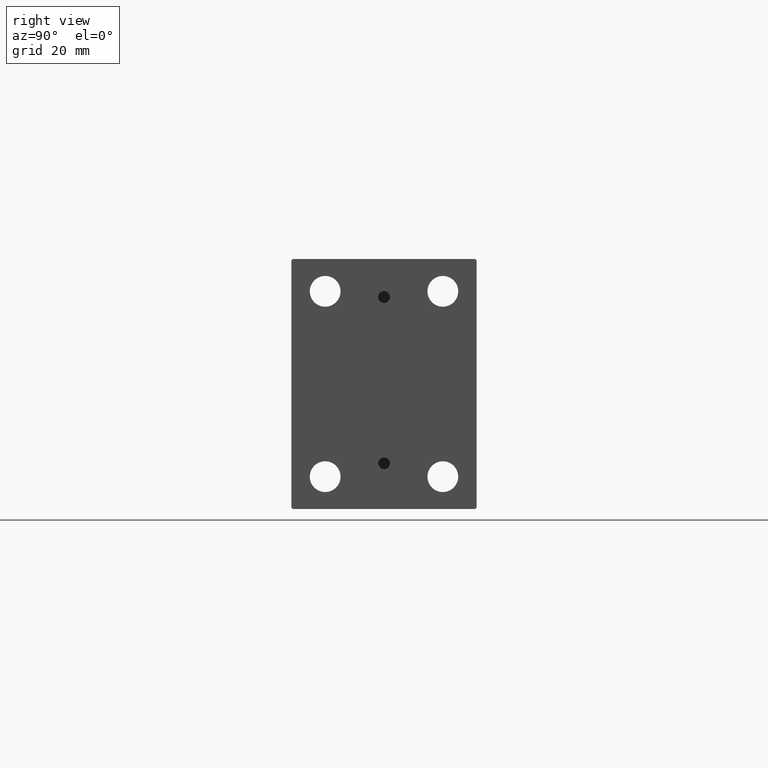
[diagram: clean part render]
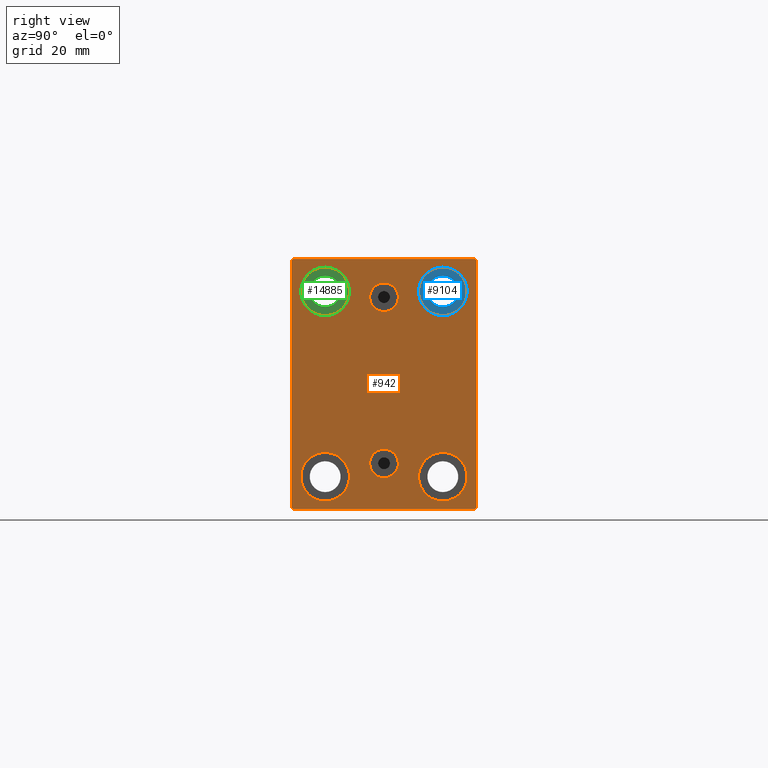
[diagram: same view with three faces highlighted in distinct colors, each labeled with its STEP entity id]
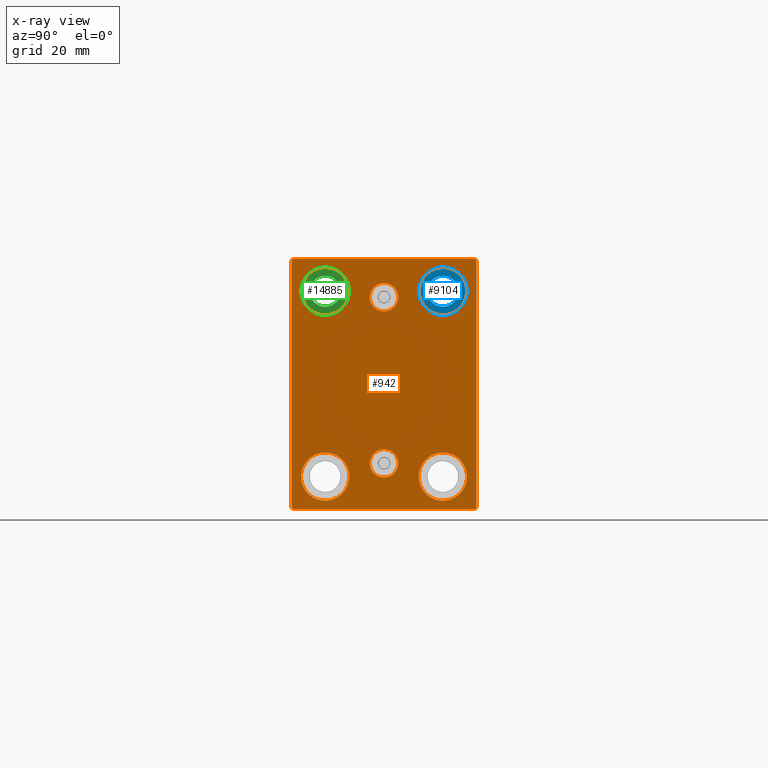
[diagram: x-ray of the same camera — body ghosted, the three highlighted faces saturated]
A machine part, right view with three faces highlighted in distinct colors.
The next image is the same camera in x-ray (body ghosted, the three faces saturated) — at least one of them is partly hidden behind the body in this view.
Their STEP definitions:

[orange] entity #942 — the highlighted planar face has unit normal (1, 0, 0).
#176 = DIRECTION ( 'NONE',  ( 0.000000000000000000, 0.000000000000000000, 1.000000000000000000 ) ) ;
#890 = VECTOR ( 'NONE', #25963, 1000.000000000000114 ) ;
#942 = ADVANCED_FACE ( 'NONE', ( #33951, #40374, #29543, #3668, #13637, #40587, #33513 ), #43037, .T. ) ;
#1051 = DIRECTION ( 'NONE',  ( -1.000000000000000000, -0.000000000000000000, -0.000000000000000000 ) ) ;
#1154 = LINE ( 'NONE', #31445, #35988 ) ;
#1887 = ORIENTED_EDGE ( 'NONE', *, *, #27777, .T. ) ;
#2181 = AXIS2_PLACEMENT_3D ( 'NONE', #4368, #1051, #41503 ) ;
#2260 = AXIS2_PLACEMENT_3D ( 'NONE', #35180, #11111, #17959 ) ;
#2276 = AXIS2_PLACEMENT_3D ( 'NONE', #41416, #41631, #14676 ) ;
#2436 = VERTEX_POINT ( 'NONE', #41484 ) ;
#2573 = VERTEX_POINT ( 'NONE', #6079 ) ;
#2625 = EDGE_CURVE ( 'NONE', #31962, #31149, #26099, .T. ) ;
#2763 = LINE ( 'NONE', #35729, #19803 ) ;
#2873 = AXIS2_PLACEMENT_3D ( 'NONE', #40675, #7065, #34046 ) ;
#3023 = CARTESIAN_POINT ( 'NONE',  ( 213.0000000000000000, -19.99999999999999645, 23.25000000000000355 ) ) ;
#3033 = ORIENTED_EDGE ( 'NONE', *, *, #9867, .T. ) ;
#3227 = CARTESIAN_POINT ( 'NONE',  ( 213.0000000000000000, 0.000000000000000000, 0.000000000000000000 ) ) ;
#3253 = ORIENTED_EDGE ( 'NONE', *, *, #26288, .F. ) ;
#3638 = VECTOR ( 'NONE', #18404, 1000.000000000000000 ) ;
#3668 = FACE_BOUND ( 'NONE', #8580, .T. ) ;
#3748 = VERTEX_POINT ( 'NONE', #30064 ) ;
#3852 = AXIS2_PLACEMENT_3D ( 'NONE', #21968, #15333, #5365 ) ;
#4261 = EDGE_CURVE ( 'NONE', #40922, #13121, #32479, .T. ) ;
#4368 = CARTESIAN_POINT ( 'NONE',  ( 213.0000000000000000, 20.00000000000000355, 31.50000000000000000 ) ) ;
#4800 = EDGE_CURVE ( 'NONE', #5698, #28217, #20536, .T. ) ;
#4906 = CARTESIAN_POINT ( 'NONE',  ( 213.0000000000000000, 31.50000000000000000, 42.50000000000000711 ) ) ;
#4918 = DIRECTION ( 'NONE',  ( -1.000000000000000000, -0.000000000000000000, -0.000000000000000000 ) ) ;
#5039 = EDGE_CURVE ( 'NONE', #29533, #2573, #2763, .T. ) ;
#5365 = DIRECTION ( 'NONE',  ( 0.000000000000000000, 0.000000000000000000, 1.000000000000000000 ) ) ;
#5481 = ORIENTED_EDGE ( 'NONE', *, *, #2625, .F. ) ;
#5659 = CARTESIAN_POINT ( 'NONE',  ( 213.0000000000000000, 36.75000000000000711, 36.75000000000000711 ) ) ;
#5698 = VERTEX_POINT ( 'NONE', #39374 ) ;
#5818 = EDGE_CURVE ( 'NONE', #28217, #5698, #7806, .T. ) ;
#5977 = CARTESIAN_POINT ( 'NONE',  ( 213.0000000000000000, -19.99999999999999645, 39.74999999999999289 ) ) ;
#6079 = CARTESIAN_POINT ( 'NONE',  ( 213.0000000000000000, 31.50000000000001421, -42.00000000000000711 ) ) ;
#6406 = DIRECTION ( 'NONE',  ( 0.000000000000000000, 1.000000000000000000, 0.000000000000000000 ) ) ;
#6759 = DIRECTION ( 'NONE',  ( 0.000000000000000000, 0.000000000000000000, -1.000000000000000000 ) ) ;
#6949 = EDGE_CURVE ( 'NONE', #35128, #23384, #21270, .T. ) ;
#7014 = CARTESIAN_POINT ( 'NONE',  ( 213.0000000000000000, -20.00000000000000355, -31.49999999999999289 ) ) ;
#7065 = DIRECTION ( 'NONE',  ( -1.000000000000000000, -0.000000000000000000, -0.000000000000000000 ) ) ;
#7589 = EDGE_CURVE ( 'NONE', #2436, #20943, #25042, .T. ) ;
#7590 = CARTESIAN_POINT ( 'NONE',  ( 213.0000000000000000, 20.00000000000000355, 31.50000000000000000 ) ) ;
#7745 = DIRECTION ( 'NONE',  ( 0.000000000000000000, -1.632680918566406300E-16, 1.000000000000000000 ) ) ;
#7806 = CIRCLE ( 'NONE', #2873, 8.250000000000000000 ) ;
#8580 = EDGE_LOOP ( 'NONE', ( #33201, #3033 ) ) ;
#8693 = CARTESIAN_POINT ( 'NONE',  ( 213.0000000000000000, 31.50000000000000000, 42.00000000000000711 ) ) ;
#8892 = DIRECTION ( 'NONE',  ( 0.000000000000000000, 0.000000000000000000, 1.000000000000000000 ) ) ;
#9688 = EDGE_CURVE ( 'NONE', #20943, #25465, #22442, .T. ) ;
#9867 = EDGE_CURVE ( 'NONE', #26369, #10308, #31257, .T. ) ;
#10308 = VERTEX_POINT ( 'NONE', #3023 ) ;
#11019 = CARTESIAN_POINT ( 'NONE',  ( 213.0000000000000000, 20.00000000000000355, 39.74999999999999289 ) ) ;
#11034 = ORIENTED_EDGE ( 'NONE', *, *, #6949, .T. ) ;
#11111 = DIRECTION ( 'NONE',  ( 1.000000000000000000, 0.000000000000000000, -0.000000000000000000 ) ) ;
#11360 = AXIS2_PLACEMENT_3D ( 'NONE', #3227, #33079, #6759 ) ;
#11495 = EDGE_LOOP ( 'NONE', ( #39679, #3253 ) ) ;
#11596 = CARTESIAN_POINT ( 'NONE',  ( 213.0000000000000000, 31.00000000000001421, -42.50000000000000711 ) ) ;
#12085 = CIRCLE ( 'NONE', #27620, 8.249999999999992895 ) ;
#12157 = EDGE_LOOP ( 'NONE', ( #24799, #22067 ) ) ;
#12777 = AXIS2_PLACEMENT_3D ( 'NONE', #41120, #37586, #17265 ) ;
#12999 = CARTESIAN_POINT ( 'NONE',  ( 213.0000000000000000, -31.50000000000000000, 41.99999999999999289 ) ) ;
#13121 = VERTEX_POINT ( 'NONE', #21482 ) ;
#13637 = FACE_BOUND ( 'NONE', #35783, .T. ) ;
#13841 = CARTESIAN_POINT ( 'NONE',  ( 213.0000000000000000, -31.50000000000000000, -42.00000000000000711 ) ) ;
#13963 = CARTESIAN_POINT ( 'NONE',  ( 213.0000000000000000, 31.50000000000001421, -42.50000000000000711 ) ) ;
#14263 = DIRECTION ( 'NONE',  ( 0.000000000000000000, 0.000000000000000000, -1.000000000000000000 ) ) ;
#14474 = CIRCLE ( 'NONE', #3852, 4.859999999999995879 ) ;
#14656 = DIRECTION ( 'NONE',  ( -0.000000000000000000, 0.7071067811865474617, -0.7071067811865474617 ) ) ;
#14676 = DIRECTION ( 'NONE',  ( 0.000000000000000000, 0.000000000000000000, 1.000000000000000000 ) ) ;
#15333 = DIRECTION ( 'NONE',  ( 1.000000000000000000, 0.000000000000000000, -0.000000000000000000 ) ) ;
#15885 = EDGE_CURVE ( 'NONE', #25465, #20360, #23435, .T. ) ;
#16525 = ORIENTED_EDGE ( 'NONE', *, *, #30337, .T. ) ;
#16629 = CARTESIAN_POINT ( 'NONE',  ( 213.0000000000000000, 3.306546357697852550E-15, -31.85999999999998522 ) ) ;
#17114 = EDGE_LOOP ( 'NONE', ( #5481, #26734 ) ) ;
#17255 = DIRECTION ( 'NONE',  ( 0.000000000000000000, 0.000000000000000000, -1.000000000000000000 ) ) ;
#17265 = DIRECTION ( 'NONE',  ( 0.000000000000000000, 0.000000000000000000, 1.000000000000000000 ) ) ;
#17344 = CIRCLE ( 'NONE', #42040, 8.249999999999992895 ) ;
#17488 = DIRECTION ( 'NONE',  ( 0.000000000000000000, 0.000000000000000000, -1.000000000000000000 ) ) ;
#17959 = DIRECTION ( 'NONE',  ( 0.000000000000000000, 0.000000000000000000, 1.000000000000000000 ) ) ;
#17999 = EDGE_LOOP ( 'NONE', ( #36085, #43613, #18794, #26202, #22510, #43388, #28214, #1887 ) ) ;
#18404 = DIRECTION ( 'NONE',  ( 0.000000000000000000, -1.000000000000000000, -2.202823461557850341E-16 ) ) ;
#18415 = AXIS2_PLACEMENT_3D ( 'NONE', #20362, #33832, #17488 ) ;
#18794 = ORIENTED_EDGE ( 'NONE', *, *, #15885, .T. ) ;
#19010 = VERTEX_POINT ( 'NONE', #21079 ) ;
#19161 = DIRECTION ( 'NONE',  ( -0.000000000000000000, -0.7071067811865474617, 0.7071067811865474617 ) ) ;
#19803 = VECTOR ( 'NONE', #25772, 1000.000000000000114 ) ;
#20360 = VERTEX_POINT ( 'NONE', #13841 ) ;
#20362 = CARTESIAN_POINT ( 'NONE',  ( 213.0000000000000000, -3.571693674697836683E-15, 29.50000000000001066 ) ) ;
#20536 = CIRCLE ( 'NONE', #12777, 8.250000000000000000 ) ;
#20768 = VERTEX_POINT ( 'NONE', #8693 ) ;
#20779 = EDGE_CURVE ( 'NONE', #33050, #19010, #14474, .T. ) ;
#20943 = VERTEX_POINT ( 'NONE', #23476 ) ;
#21024 = LINE ( 'NONE', #13963, #22299 ) ;
#21079 = CARTESIAN_POINT ( 'NONE',  ( 213.0000000000000000, 3.901724702083465828E-15, -22.13999999999999346 ) ) ;
#21270 = CIRCLE ( 'NONE', #2181, 8.249999999999992895 ) ;
#21482 = CARTESIAN_POINT ( 'NONE',  ( 213.0000000000000000, -20.00000000000000355, -23.24999999999999289 ) ) ;
#21968 = CARTESIAN_POINT ( 'NONE',  ( 213.0000000000000000, 3.306546357697852550E-15, -26.99999999999998934 ) ) ;
#22067 = ORIENTED_EDGE ( 'NONE', *, *, #4800, .T. ) ;
#22299 = VECTOR ( 'NONE', #7745, 1000.000000000000000 ) ;
#22442 = LINE ( 'NONE', #43213, #890 ) ;
#22510 = ORIENTED_EDGE ( 'NONE', *, *, #30835, .T. ) ;
#22751 = CIRCLE ( 'NONE', #2260, 4.859999999999995879 ) ;
#23382 = CARTESIAN_POINT ( 'NONE',  ( 213.0000000000000000, 19.99999999999999645, -39.74999999999999289 ) ) ;
#23384 = VERTEX_POINT ( 'NONE', #11019 ) ;
#23435 = LINE ( 'NONE', #23654, #36296 ) ;
#23476 = CARTESIAN_POINT ( 'NONE',  ( 213.0000000000000000, -31.00000000000000000, 42.49999999999999289 ) ) ;
#23654 = CARTESIAN_POINT ( 'NONE',  ( 213.0000000000000000, -31.50000000000000000, 42.49999999999999289 ) ) ;
#23896 = AXIS2_PLACEMENT_3D ( 'NONE', #24195, #36798, #30157 ) ;
#24195 = CARTESIAN_POINT ( 'NONE',  ( 213.0000000000000000, -20.00000000000000355, -31.49999999999999289 ) ) ;
#24197 = EDGE_CURVE ( 'NONE', #2573, #20768, #21024, .T. ) ;
#24693 = EDGE_CURVE ( 'NONE', #23384, #35128, #17344, .T. ) ;
#24728 = AXIS2_PLACEMENT_3D ( 'NONE', #7014, #31109, #176 ) ;
#24799 = ORIENTED_EDGE ( 'NONE', *, *, #5818, .T. ) ;
#25042 = LINE ( 'NONE', #4906, #3638 ) ;
#25465 = VERTEX_POINT ( 'NONE', #12999 ) ;
#25772 = DIRECTION ( 'NONE',  ( -0.000000000000000000, 0.7071067811865474617, 0.7071067811865474617 ) ) ;
#25963 = DIRECTION ( 'NONE',  ( 0.000000000000000000, -0.7071067811865474617, -0.7071067811865474617 ) ) ;
#26099 = CIRCLE ( 'NONE', #35989, 4.859999999999999432 ) ;
#26202 = ORIENTED_EDGE ( 'NONE', *, *, #34163, .T. ) ;
#26288 = EDGE_CURVE ( 'NONE', #19010, #33050, #22751, .T. ) ;
#26369 = VERTEX_POINT ( 'NONE', #5977 ) ;
#26704 = CARTESIAN_POINT ( 'NONE',  ( 213.0000000000000000, -20.00000000000000355, -39.74999999999999289 ) ) ;
#26734 = ORIENTED_EDGE ( 'NONE', *, *, #36755, .F. ) ;
#27266 = CARTESIAN_POINT ( 'NONE',  ( 213.0000000000000000, -3.571693674697836683E-15, 24.64000000000001123 ) ) ;
#27620 = AXIS2_PLACEMENT_3D ( 'NONE', #28998, #31667, #8892 ) ;
#27762 = CARTESIAN_POINT ( 'NONE',  ( 213.0000000000000000, -2.976515330312223011E-15, 34.36000000000000654 ) ) ;
#27777 = EDGE_CURVE ( 'NONE', #20768, #2436, #35953, .T. ) ;
#28214 = ORIENTED_EDGE ( 'NONE', *, *, #24197, .T. ) ;
#28217 = VERTEX_POINT ( 'NONE', #23382 ) ;
#28998 = CARTESIAN_POINT ( 'NONE',  ( 213.0000000000000000, -19.99999999999999645, 31.50000000000000000 ) ) ;
#29533 = VERTEX_POINT ( 'NONE', #11596 ) ;
#29543 = FACE_BOUND ( 'NONE', #12157, .T. ) ;
#30064 = CARTESIAN_POINT ( 'NONE',  ( 213.0000000000000000, -31.00000000000000000, -42.50000000000000711 ) ) ;
#30157 = DIRECTION ( 'NONE',  ( 0.000000000000000000, 0.000000000000000000, 1.000000000000000000 ) ) ;
#30337 = EDGE_CURVE ( 'NONE', #13121, #40922, #40119, .T. ) ;
#30835 = EDGE_CURVE ( 'NONE', #3748, #29533, #36690, .T. ) ;
#31109 = DIRECTION ( 'NONE',  ( -1.000000000000000000, -0.000000000000000000, -0.000000000000000000 ) ) ;
#31149 = VERTEX_POINT ( 'NONE', #27762 ) ;
#31243 = DIRECTION ( 'NONE',  ( 0.000000000000000000, 0.000000000000000000, 1.000000000000000000 ) ) ;
#31257 = CIRCLE ( 'NONE', #2276, 8.249999999999992895 ) ;
#31266 = CARTESIAN_POINT ( 'NONE',  ( 213.0000000000000000, -3.571693674697836683E-15, 29.50000000000001066 ) ) ;
#31445 = CARTESIAN_POINT ( 'NONE',  ( 213.0000000000000000, -36.75000000000000711, -36.75000000000000711 ) ) ;
#31603 = VECTOR ( 'NONE', #19161, 1000.000000000000114 ) ;
#31667 = DIRECTION ( 'NONE',  ( -1.000000000000000000, -0.000000000000000000, -0.000000000000000000 ) ) ;
#31962 = VERTEX_POINT ( 'NONE', #27266 ) ;
#32479 = CIRCLE ( 'NONE', #24728, 8.250000000000000000 ) ;
#33050 = VERTEX_POINT ( 'NONE', #16629 ) ;
#33079 = DIRECTION ( 'NONE',  ( 1.000000000000000000, 0.000000000000000000, 0.000000000000000000 ) ) ;
#33201 = ORIENTED_EDGE ( 'NONE', *, *, #41598, .T. ) ;
#33513 = FACE_OUTER_BOUND ( 'NONE', #17999, .T. ) ;
#33653 = EDGE_LOOP ( 'NONE', ( #35967, #16525 ) ) ;
#33832 = DIRECTION ( 'NONE',  ( 1.000000000000000000, 0.000000000000000000, 0.000000000000000000 ) ) ;
#33951 = FACE_BOUND ( 'NONE', #17114, .T. ) ;
#34046 = DIRECTION ( 'NONE',  ( 0.000000000000000000, 0.000000000000000000, 1.000000000000000000 ) ) ;
#34163 = EDGE_CURVE ( 'NONE', #20360, #3748, #1154, .T. ) ;
#35128 = VERTEX_POINT ( 'NONE', #37045 ) ;
#35180 = CARTESIAN_POINT ( 'NONE',  ( 213.0000000000000000, 3.306546357697852550E-15, -26.99999999999998934 ) ) ;
#35729 = CARTESIAN_POINT ( 'NONE',  ( 213.0000000000000000, 36.75000000000001421, -36.75000000000001421 ) ) ;
#35783 = EDGE_LOOP ( 'NONE', ( #11034, #35885 ) ) ;
#35885 = ORIENTED_EDGE ( 'NONE', *, *, #24693, .T. ) ;
#35953 = LINE ( 'NONE', #5659, #31603 ) ;
#35967 = ORIENTED_EDGE ( 'NONE', *, *, #4261, .T. ) ;
#35988 = VECTOR ( 'NONE', #14656, 1000.000000000000114 ) ;
#35989 = AXIS2_PLACEMENT_3D ( 'NONE', #31266, #41429, #14263 ) ;
#36085 = ORIENTED_EDGE ( 'NONE', *, *, #7589, .T. ) ;
#36296 = VECTOR ( 'NONE', #17255, 1000.000000000000000 ) ;
#36646 = VECTOR ( 'NONE', #6406, 1000.000000000000000 ) ;
#36690 = LINE ( 'NONE', #40455, #36646 ) ;
#36755 = EDGE_CURVE ( 'NONE', #31149, #31962, #37466, .T. ) ;
#36798 = DIRECTION ( 'NONE',  ( -1.000000000000000000, -0.000000000000000000, -0.000000000000000000 ) ) ;
#37045 = CARTESIAN_POINT ( 'NONE',  ( 213.0000000000000000, 20.00000000000000355, 23.25000000000000355 ) ) ;
#37466 = CIRCLE ( 'NONE', #18415, 4.859999999999999432 ) ;
#37586 = DIRECTION ( 'NONE',  ( -1.000000000000000000, -0.000000000000000000, -0.000000000000000000 ) ) ;
#39374 = CARTESIAN_POINT ( 'NONE',  ( 213.0000000000000000, 19.99999999999999645, -23.24999999999999289 ) ) ;
#39679 = ORIENTED_EDGE ( 'NONE', *, *, #20779, .F. ) ;
#40119 = CIRCLE ( 'NONE', #23896, 8.250000000000000000 ) ;
#40374 = FACE_BOUND ( 'NONE', #11495, .T. ) ;
#40455 = CARTESIAN_POINT ( 'NONE',  ( 213.0000000000000000, -31.50000000000000000, -42.50000000000000711 ) ) ;
#40587 = FACE_BOUND ( 'NONE', #33653, .T. ) ;
#40675 = CARTESIAN_POINT ( 'NONE',  ( 213.0000000000000000, 19.99999999999999645, -31.49999999999999289 ) ) ;
#40922 = VERTEX_POINT ( 'NONE', #26704 ) ;
#41120 = CARTESIAN_POINT ( 'NONE',  ( 213.0000000000000000, 19.99999999999999645, -31.49999999999999289 ) ) ;
#41416 = CARTESIAN_POINT ( 'NONE',  ( 213.0000000000000000, -19.99999999999999645, 31.50000000000000000 ) ) ;
#41429 = DIRECTION ( 'NONE',  ( 1.000000000000000000, 0.000000000000000000, 0.000000000000000000 ) ) ;
#41484 = CARTESIAN_POINT ( 'NONE',  ( 213.0000000000000000, 31.00000000000000000, 42.50000000000000711 ) ) ;
#41503 = DIRECTION ( 'NONE',  ( 0.000000000000000000, 0.000000000000000000, 1.000000000000000000 ) ) ;
#41598 = EDGE_CURVE ( 'NONE', #10308, #26369, #12085, .T. ) ;
#41631 = DIRECTION ( 'NONE',  ( -1.000000000000000000, -0.000000000000000000, -0.000000000000000000 ) ) ;
#42040 = AXIS2_PLACEMENT_3D ( 'NONE', #7590, #4918, #31243 ) ;
#43037 = PLANE ( 'NONE',  #11360 ) ;
#43213 = CARTESIAN_POINT ( 'NONE',  ( 213.0000000000000000, -36.75000000000000000, 36.75000000000000000 ) ) ;
#43388 = ORIENTED_EDGE ( 'NONE', *, *, #5039, .T. ) ;
#43613 = ORIENTED_EDGE ( 'NONE', *, *, #9688, .T. ) ;

[blue] entity #9104 — the highlighted planar face has unit normal (1, 0, 0).
#6169 = FACE_OUTER_BOUND ( 'NONE', #39943, .T. ) ;
#7199 = DIRECTION ( 'NONE',  ( -1.000000000000000000, -0.000000000000000000, -0.000000000000000000 ) ) ;
#7763 = EDGE_CURVE ( 'NONE', #39465, #16372, #15644, .T. ) ;
#9100 = DIRECTION ( 'NONE',  ( -1.000000000000000000, -0.000000000000000000, -0.000000000000000000 ) ) ;
#9104 = ADVANCED_FACE ( 'NONE', ( #6169, #19663 ), #29820, .T. ) ;
#9296 = CARTESIAN_POINT ( 'NONE',  ( 201.9999999999999716, 20.00000000000000355, 31.50000000000000000 ) ) ;
#9646 = ORIENTED_EDGE ( 'NONE', *, *, #31569, .F. ) ;
#10875 = EDGE_CURVE ( 'NONE', #16372, #39465, #33388, .T. ) ;
#12059 = CARTESIAN_POINT ( 'NONE',  ( 201.9999999999999716, 20.00000000000000355, 39.74999999999999289 ) ) ;
#12602 = DIRECTION ( 'NONE',  ( 1.000000000000000000, 0.000000000000000000, -0.000000000000000000 ) ) ;
#13128 = EDGE_CURVE ( 'NONE', #23846, #15228, #43315, .T. ) ;
#13366 = ORIENTED_EDGE ( 'NONE', *, *, #7763, .T. ) ;
#15228 = VERTEX_POINT ( 'NONE', #22521 ) ;
#15644 = CIRCLE ( 'NONE', #31888, 5.249999999999997335 ) ;
#15918 = DIRECTION ( 'NONE',  ( 0.000000000000000000, 0.000000000000000000, 1.000000000000000000 ) ) ;
#16372 = VERTEX_POINT ( 'NONE', #38615 ) ;
#16606 = CARTESIAN_POINT ( 'NONE',  ( 201.9999999999999716, 20.00000000000000355, 31.50000000000000000 ) ) ;
#19663 = FACE_BOUND ( 'NONE', #39061, .T. ) ;
#19821 = DIRECTION ( 'NONE',  ( 0.000000000000000000, 0.000000000000000000, 1.000000000000000000 ) ) ;
#20146 = DIRECTION ( 'NONE',  ( 0.000000000000000000, 0.000000000000000000, -1.000000000000000000 ) ) ;
#20559 = ORIENTED_EDGE ( 'NONE', *, *, #13128, .F. ) ;
#21283 = CARTESIAN_POINT ( 'NONE',  ( 201.9999999999999716, 20.00000000000000355, 26.25000000000000355 ) ) ;
#21890 = DIRECTION ( 'NONE',  ( -1.000000000000000000, -0.000000000000000000, -0.000000000000000000 ) ) ;
#22521 = CARTESIAN_POINT ( 'NONE',  ( 201.9999999999999716, 20.00000000000000355, 23.25000000000000355 ) ) ;
#23346 = CARTESIAN_POINT ( 'NONE',  ( 201.9999999999999716, 20.00000000000000355, 31.50000000000000000 ) ) ;
#23846 = VERTEX_POINT ( 'NONE', #12059 ) ;
#23925 = CIRCLE ( 'NONE', #35227, 8.249999999999992895 ) ;
#24923 = AXIS2_PLACEMENT_3D ( 'NONE', #38458, #21890, #38675 ) ;
#28728 = ORIENTED_EDGE ( 'NONE', *, *, #10875, .T. ) ;
#29600 = CARTESIAN_POINT ( 'NONE',  ( 201.9999999999999716, 0.000000000000000000, 0.000000000000000000 ) ) ;
#29820 = PLANE ( 'NONE',  #36867 ) ;
#31569 = EDGE_CURVE ( 'NONE', #15228, #23846, #23925, .T. ) ;
#31888 = AXIS2_PLACEMENT_3D ( 'NONE', #16606, #9100, #20146 ) ;
#33152 = DIRECTION ( 'NONE',  ( -1.000000000000000000, -0.000000000000000000, -0.000000000000000000 ) ) ;
#33388 = CIRCLE ( 'NONE', #24923, 5.249999999999997335 ) ;
#35227 = AXIS2_PLACEMENT_3D ( 'NONE', #23346, #7199, #19821 ) ;
#36238 = AXIS2_PLACEMENT_3D ( 'NONE', #9296, #33152, #43336 ) ;
#36867 = AXIS2_PLACEMENT_3D ( 'NONE', #29600, #12602, #15918 ) ;
#38458 = CARTESIAN_POINT ( 'NONE',  ( 201.9999999999999716, 20.00000000000000355, 31.50000000000000000 ) ) ;
#38615 = CARTESIAN_POINT ( 'NONE',  ( 201.9999999999999716, 20.00000000000000355, 36.75000000000000000 ) ) ;
#38675 = DIRECTION ( 'NONE',  ( 0.000000000000000000, 0.000000000000000000, -1.000000000000000000 ) ) ;
#39061 = EDGE_LOOP ( 'NONE', ( #28728, #13366 ) ) ;
#39465 = VERTEX_POINT ( 'NONE', #21283 ) ;
#39943 = EDGE_LOOP ( 'NONE', ( #9646, #20559 ) ) ;
#43315 = CIRCLE ( 'NONE', #36238, 8.249999999999992895 ) ;
#43336 = DIRECTION ( 'NONE',  ( 0.000000000000000000, 0.000000000000000000, 1.000000000000000000 ) ) ;

[green] entity #14885 — the highlighted planar face has unit normal (1, 0, 0).
#2066 = DIRECTION ( 'NONE',  ( 0.000000000000000000, 0.000000000000000000, -1.000000000000000000 ) ) ;
#2083 = DIRECTION ( 'NONE',  ( -1.000000000000000000, -0.000000000000000000, -0.000000000000000000 ) ) ;
#2713 = DIRECTION ( 'NONE',  ( -1.000000000000000000, -0.000000000000000000, -0.000000000000000000 ) ) ;
#2728 = DIRECTION ( 'NONE',  ( 0.000000000000000000, 0.000000000000000000, 1.000000000000000000 ) ) ;
#6239 = VERTEX_POINT ( 'NONE', #19322 ) ;
#6633 = EDGE_CURVE ( 'NONE', #26073, #14103, #14227, .T. ) ;
#6897 = CARTESIAN_POINT ( 'NONE',  ( 201.9999999999999716, 0.000000000000000000, 0.000000000000000000 ) ) ;
#8639 = CARTESIAN_POINT ( 'NONE',  ( 201.9999999999999716, -19.99999999999999645, 23.25000000000000355 ) ) ;
#8697 = EDGE_CURVE ( 'NONE', #6239, #43164, #32611, .T. ) ;
#9166 = CIRCLE ( 'NONE', #14135, 8.249999999999992895 ) ;
#11135 = AXIS2_PLACEMENT_3D ( 'NONE', #32356, #2713, #2066 ) ;
#11489 = ORIENTED_EDGE ( 'NONE', *, *, #26973, .T. ) ;
#13249 = CIRCLE ( 'NONE', #11135, 5.249999999999997335 ) ;
#13774 = CARTESIAN_POINT ( 'NONE',  ( 201.9999999999999716, -19.99999999999999645, 26.25000000000000355 ) ) ;
#14103 = VERTEX_POINT ( 'NONE', #13774 ) ;
#14135 = AXIS2_PLACEMENT_3D ( 'NONE', #34249, #37993, #27833 ) ;
#14195 = EDGE_LOOP ( 'NONE', ( #35221, #24506 ) ) ;
#14227 = CIRCLE ( 'NONE', #42428, 5.249999999999997335 ) ;
#14885 = ADVANCED_FACE ( 'NONE', ( #40725, #30988 ), #20395, .T. ) ;
#15423 = EDGE_LOOP ( 'NONE', ( #37323, #11489 ) ) ;
#17916 = CARTESIAN_POINT ( 'NONE',  ( 201.9999999999999716, -19.99999999999999645, 31.50000000000000000 ) ) ;
#18571 = DIRECTION ( 'NONE',  ( 0.000000000000000000, 0.000000000000000000, -1.000000000000000000 ) ) ;
#19207 = AXIS2_PLACEMENT_3D ( 'NONE', #32807, #2083, #2728 ) ;
#19322 = CARTESIAN_POINT ( 'NONE',  ( 201.9999999999999716, -19.99999999999999645, 39.74999999999999289 ) ) ;
#20395 = PLANE ( 'NONE',  #42647 ) ;
#24506 = ORIENTED_EDGE ( 'NONE', *, *, #8697, .F. ) ;
#26073 = VERTEX_POINT ( 'NONE', #39857 ) ;
#26973 = EDGE_CURVE ( 'NONE', #14103, #26073, #13249, .T. ) ;
#27833 = DIRECTION ( 'NONE',  ( 0.000000000000000000, 0.000000000000000000, 1.000000000000000000 ) ) ;
#30988 = FACE_BOUND ( 'NONE', #15423, .T. ) ;
#32356 = CARTESIAN_POINT ( 'NONE',  ( 201.9999999999999716, -19.99999999999999645, 31.50000000000000000 ) ) ;
#32611 = CIRCLE ( 'NONE', #19207, 8.249999999999992895 ) ;
#32807 = CARTESIAN_POINT ( 'NONE',  ( 201.9999999999999716, -19.99999999999999645, 31.50000000000000000 ) ) ;
#33316 = EDGE_CURVE ( 'NONE', #43164, #6239, #9166, .T. ) ;
#33868 = DIRECTION ( 'NONE',  ( 1.000000000000000000, 0.000000000000000000, -0.000000000000000000 ) ) ;
#34095 = DIRECTION ( 'NONE',  ( 0.000000000000000000, 0.000000000000000000, 1.000000000000000000 ) ) ;
#34249 = CARTESIAN_POINT ( 'NONE',  ( 201.9999999999999716, -19.99999999999999645, 31.50000000000000000 ) ) ;
#35221 = ORIENTED_EDGE ( 'NONE', *, *, #33316, .F. ) ;
#37323 = ORIENTED_EDGE ( 'NONE', *, *, #6633, .T. ) ;
#37993 = DIRECTION ( 'NONE',  ( -1.000000000000000000, -0.000000000000000000, -0.000000000000000000 ) ) ;
#39857 = CARTESIAN_POINT ( 'NONE',  ( 201.9999999999999716, -19.99999999999999645, 36.75000000000000000 ) ) ;
#40725 = FACE_OUTER_BOUND ( 'NONE', #14195, .T. ) ;
#41555 = DIRECTION ( 'NONE',  ( -1.000000000000000000, -0.000000000000000000, -0.000000000000000000 ) ) ;
#42428 = AXIS2_PLACEMENT_3D ( 'NONE', #17916, #41555, #18571 ) ;
#42647 = AXIS2_PLACEMENT_3D ( 'NONE', #6897, #33868, #34095 ) ;
#43164 = VERTEX_POINT ( 'NONE', #8639 ) ;